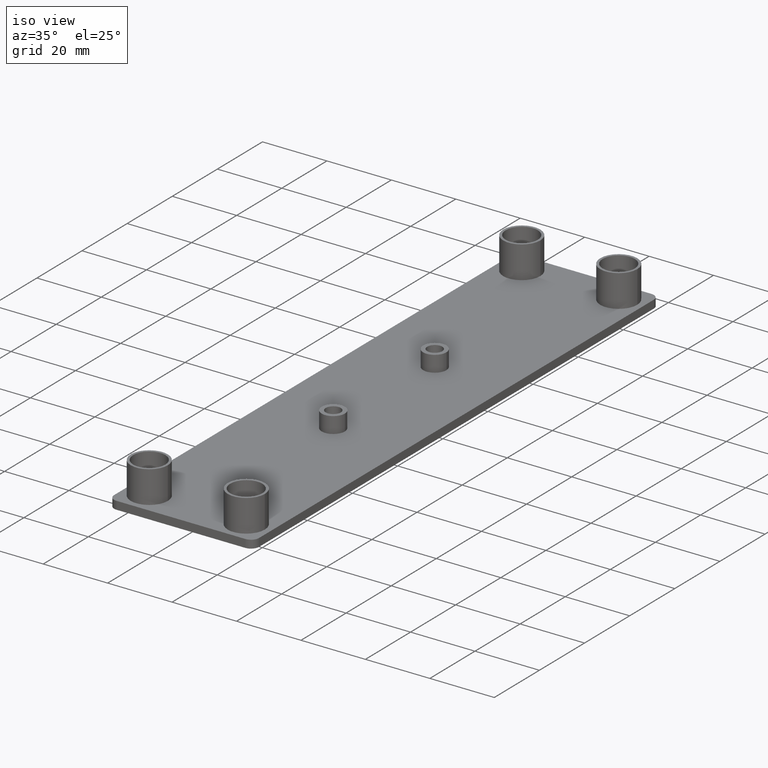
[diagram: clean part render]
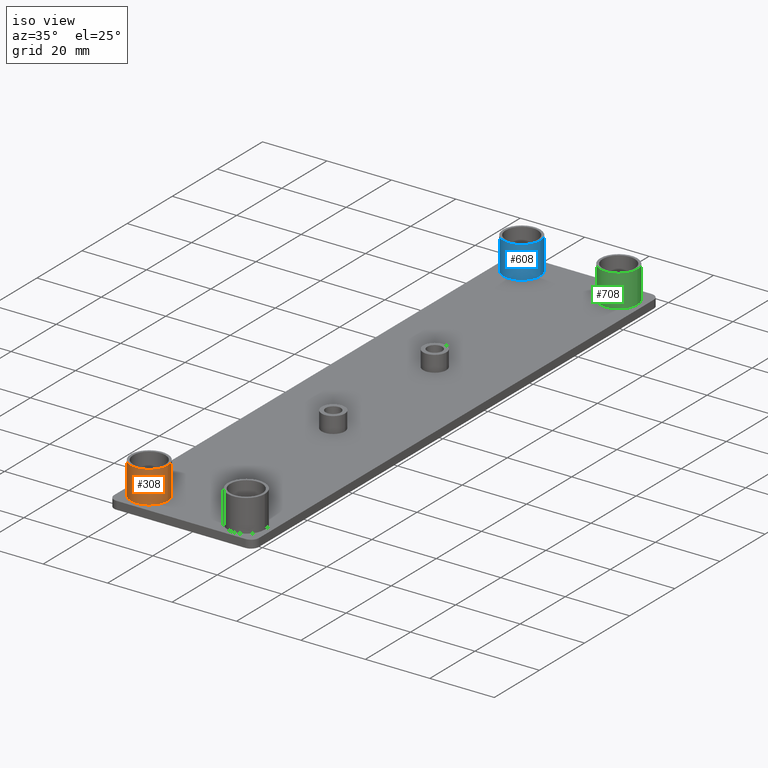
[diagram: same view with three faces highlighted in distinct colors, each labeled with its STEP entity id]
A machine part, iso view with three faces highlighted in distinct colors.
Their STEP definitions:

[orange] entity #308 — the highlighted cylindrical surface (bore or boss wall) has radius 5.75 mm, axis along (0, 0, 1).
#258=CARTESIAN_POINT('',(-15.050018999936128,-60.050044999759848,0.0));
#259=DIRECTION('',(0.0,0.0,1.0));
#260=DIRECTION('',(1.0,0.0,0.0));
#261=AXIS2_PLACEMENT_3D('',#258,#259,#260);
#262=CYLINDRICAL_SURFACE('',#261,5.749999999977001);
#263=CARTESIAN_POINT('',(-20.800018999913128,-60.050044999759848,10.0));
#264=VERTEX_POINT('',#263);
#265=CARTESIAN_POINT('',(-9.300018999959320,-60.050044999759848,10.0));
#266=VERTEX_POINT('',#265);
#267=CARTESIAN_POINT('',(-15.050018999936128,-60.050044999759848,10.0));
#268=DIRECTION('',(0.0,0.0,1.0));
#269=DIRECTION('',(1.0,0.0,0.0));
#270=AXIS2_PLACEMENT_3D('',#267,#268,#269);
#271=CIRCLE('',#270,5.749999999977001);
#272=EDGE_CURVE('',#264,#266,#271,.T.);
#273=ORIENTED_EDGE('',*,*,#272,.F.);
#274=CARTESIAN_POINT('',(-15.050018999936128,-60.050044999759848,10.0));
#275=DIRECTION('',(0.0,0.0,1.0));
#276=DIRECTION('',(1.0,0.0,0.0));
#277=AXIS2_PLACEMENT_3D('',#274,#275,#276);
#278=CIRCLE('',#277,5.749999999977001);
#279=EDGE_CURVE('',#266,#264,#278,.T.);
#280=ORIENTED_EDGE('',*,*,#279,.F.);
#281=CARTESIAN_POINT('',(-9.300018999959320,-60.050044999759848,0.0));
#282=VERTEX_POINT('',#281);
#283=CARTESIAN_POINT('',(-9.300018999959320,-60.050044999759848,0.0));
#284=DIRECTION('',(0.0,0.0,1.0));
#285=VECTOR('',#284,10.0);
#286=LINE('',#283,#285);
#287=EDGE_CURVE('',#282,#266,#286,.T.);
#288=ORIENTED_EDGE('',*,*,#287,.F.);
#289=CARTESIAN_POINT('',(-20.800018999913128,-60.050044999759848,0.0));
#290=VERTEX_POINT('',#289);
#291=CARTESIAN_POINT('',(-15.050018999936128,-60.050044999759848,0.0));
#292=DIRECTION('',(0.0,0.0,1.0));
#293=DIRECTION('',(1.0,0.0,0.0));
#294=AXIS2_PLACEMENT_3D('',#291,#292,#293);
#295=CIRCLE('',#294,5.749999999977001);
#296=EDGE_CURVE('',#282,#290,#295,.T.);
#297=ORIENTED_EDGE('',*,*,#296,.T.);
#298=CARTESIAN_POINT('',(-15.050018999936128,-60.050044999759848,0.0));
#299=DIRECTION('',(0.0,0.0,1.0));
#300=DIRECTION('',(1.0,0.0,0.0));
#301=AXIS2_PLACEMENT_3D('',#298,#299,#300);
#302=CIRCLE('',#301,5.749999999977001);
#303=EDGE_CURVE('',#290,#282,#302,.T.);
#304=ORIENTED_EDGE('',*,*,#303,.T.);
#305=ORIENTED_EDGE('',*,*,#287,.T.);
#306=EDGE_LOOP('',(#273,#280,#288,#297,#304,#305));
#307=FACE_OUTER_BOUND('',#306,.T.);
#308=ADVANCED_FACE('',(#307),#262,.T.);

[blue] entity #608 — the highlighted cylindrical surface (bore or boss wall) has radius 5.75 mm, axis along (0, 0, 1).
#558=CARTESIAN_POINT('',(-15.050021999939872,105.050044999579770,0.0));
#559=DIRECTION('',(0.0,0.0,1.0));
#560=DIRECTION('',(1.0,0.0,0.0));
#561=AXIS2_PLACEMENT_3D('',#558,#559,#560);
#562=CYLINDRICAL_SURFACE('',#561,5.749999999977001);
#563=CARTESIAN_POINT('',(-20.800021999916872,105.050044999579770,10.0));
#564=VERTEX_POINT('',#563);
#565=CARTESIAN_POINT('',(-9.300021999963064,105.050044999579770,10.0));
#566=VERTEX_POINT('',#565);
#567=CARTESIAN_POINT('',(-15.050021999939872,105.050044999579770,10.0));
#568=DIRECTION('',(0.0,0.0,1.0));
#569=DIRECTION('',(1.0,0.0,0.0));
#570=AXIS2_PLACEMENT_3D('',#567,#568,#569);
#571=CIRCLE('',#570,5.749999999977001);
#572=EDGE_CURVE('',#564,#566,#571,.T.);
#573=ORIENTED_EDGE('',*,*,#572,.F.);
#574=CARTESIAN_POINT('',(-15.050021999939872,105.050044999579770,10.0));
#575=DIRECTION('',(0.0,0.0,1.0));
#576=DIRECTION('',(1.0,0.0,0.0));
#577=AXIS2_PLACEMENT_3D('',#574,#575,#576);
#578=CIRCLE('',#577,5.749999999977001);
#579=EDGE_CURVE('',#566,#564,#578,.T.);
#580=ORIENTED_EDGE('',*,*,#579,.F.);
#581=CARTESIAN_POINT('',(-9.300021999963064,105.050044999579770,0.0));
#582=VERTEX_POINT('',#581);
#583=CARTESIAN_POINT('',(-9.300021999963064,105.050044999579770,0.0));
#584=DIRECTION('',(0.0,0.0,1.0));
#585=VECTOR('',#584,10.0);
#586=LINE('',#583,#585);
#587=EDGE_CURVE('',#582,#566,#586,.T.);
#588=ORIENTED_EDGE('',*,*,#587,.F.);
#589=CARTESIAN_POINT('',(-20.800021999916872,105.050044999579770,0.0));
#590=VERTEX_POINT('',#589);
#591=CARTESIAN_POINT('',(-15.050021999939872,105.050044999579770,0.0));
#592=DIRECTION('',(0.0,0.0,1.0));
#593=DIRECTION('',(1.0,0.0,0.0));
#594=AXIS2_PLACEMENT_3D('',#591,#592,#593);
#595=CIRCLE('',#594,5.749999999977001);
#596=EDGE_CURVE('',#582,#590,#595,.T.);
#597=ORIENTED_EDGE('',*,*,#596,.T.);
#598=CARTESIAN_POINT('',(-15.050021999939872,105.050044999579770,0.0));
#599=DIRECTION('',(0.0,0.0,1.0));
#600=DIRECTION('',(1.0,0.0,0.0));
#601=AXIS2_PLACEMENT_3D('',#598,#599,#600);
#602=CIRCLE('',#601,5.749999999977001);
#603=EDGE_CURVE('',#590,#582,#602,.T.);
#604=ORIENTED_EDGE('',*,*,#603,.T.);
#605=ORIENTED_EDGE('',*,*,#587,.T.);
#606=EDGE_LOOP('',(#573,#580,#588,#597,#604,#605));
#607=FACE_OUTER_BOUND('',#606,.T.);
#608=ADVANCED_FACE('',(#607),#562,.T.);

[green] entity #708 — the highlighted cylindrical surface (bore or boss wall) has radius 5.75 mm, axis along (0, 0, 1).
#658=CARTESIAN_POINT('',(15.049977999939529,105.049999999579540,0.0));
#659=DIRECTION('',(0.0,0.0,1.0));
#660=DIRECTION('',(1.0,0.0,0.0));
#661=AXIS2_PLACEMENT_3D('',#658,#659,#660);
#662=CYLINDRICAL_SURFACE('',#661,5.749999999977001);
#663=CARTESIAN_POINT('',(9.299977999962529,105.049999999579540,10.0));
#664=VERTEX_POINT('',#663);
#665=CARTESIAN_POINT('',(20.799977999916337,105.049999999579540,10.0));
#666=VERTEX_POINT('',#665);
#667=CARTESIAN_POINT('',(15.049977999939529,105.049999999579540,10.0));
#668=DIRECTION('',(0.0,0.0,1.0));
#669=DIRECTION('',(1.0,0.0,0.0));
#670=AXIS2_PLACEMENT_3D('',#667,#668,#669);
#671=CIRCLE('',#670,5.749999999977001);
#672=EDGE_CURVE('',#664,#666,#671,.T.);
#673=ORIENTED_EDGE('',*,*,#672,.F.);
#674=CARTESIAN_POINT('',(15.049977999939529,105.049999999579540,10.0));
#675=DIRECTION('',(0.0,0.0,1.0));
#676=DIRECTION('',(1.0,0.0,0.0));
#677=AXIS2_PLACEMENT_3D('',#674,#675,#676);
#678=CIRCLE('',#677,5.749999999977001);
#679=EDGE_CURVE('',#666,#664,#678,.T.);
#680=ORIENTED_EDGE('',*,*,#679,.F.);
#681=CARTESIAN_POINT('',(20.799977999916337,105.049999999579540,0.0));
#682=VERTEX_POINT('',#681);
#683=CARTESIAN_POINT('',(20.799977999916337,105.049999999579540,0.0));
#684=DIRECTION('',(0.0,0.0,1.0));
#685=VECTOR('',#684,10.0);
#686=LINE('',#683,#685);
#687=EDGE_CURVE('',#682,#666,#686,.T.);
#688=ORIENTED_EDGE('',*,*,#687,.F.);
#689=CARTESIAN_POINT('',(9.299977999962529,105.049999999579540,0.0));
#690=VERTEX_POINT('',#689);
#691=CARTESIAN_POINT('',(15.049977999939529,105.049999999579540,0.0));
#692=DIRECTION('',(0.0,0.0,1.0));
#693=DIRECTION('',(1.0,0.0,0.0));
#694=AXIS2_PLACEMENT_3D('',#691,#692,#693);
#695=CIRCLE('',#694,5.749999999977001);
#696=EDGE_CURVE('',#682,#690,#695,.T.);
#697=ORIENTED_EDGE('',*,*,#696,.T.);
#698=CARTESIAN_POINT('',(15.049977999939529,105.049999999579540,0.0));
#699=DIRECTION('',(0.0,0.0,1.0));
#700=DIRECTION('',(1.0,0.0,0.0));
#701=AXIS2_PLACEMENT_3D('',#698,#699,#700);
#702=CIRCLE('',#701,5.749999999977001);
#703=EDGE_CURVE('',#690,#682,#702,.T.);
#704=ORIENTED_EDGE('',*,*,#703,.T.);
#705=ORIENTED_EDGE('',*,*,#687,.T.);
#706=EDGE_LOOP('',(#673,#680,#688,#697,#704,#705));
#707=FACE_OUTER_BOUND('',#706,.T.);
#708=ADVANCED_FACE('',(#707),#662,.T.);